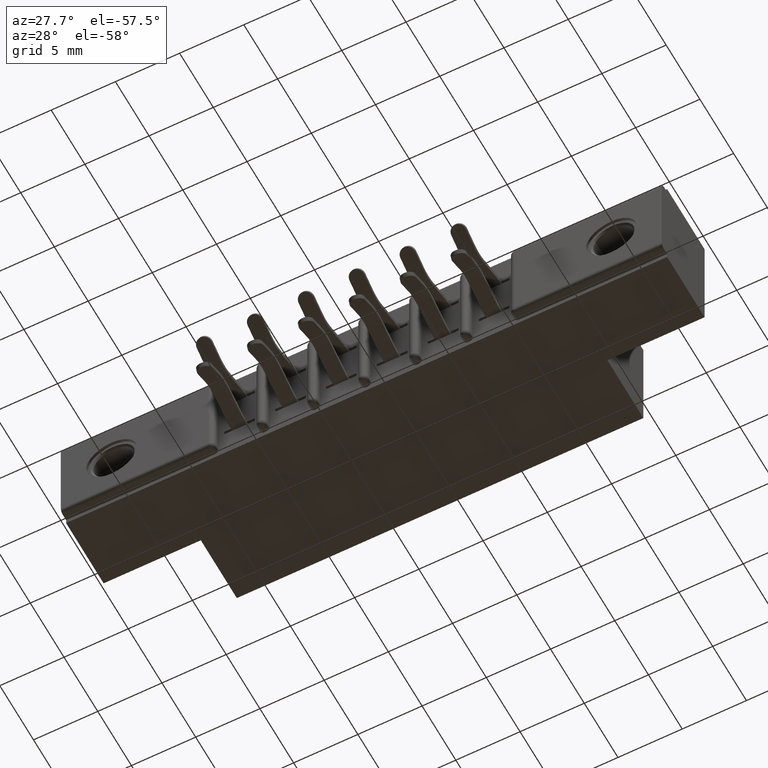
[diagram: clean part render]
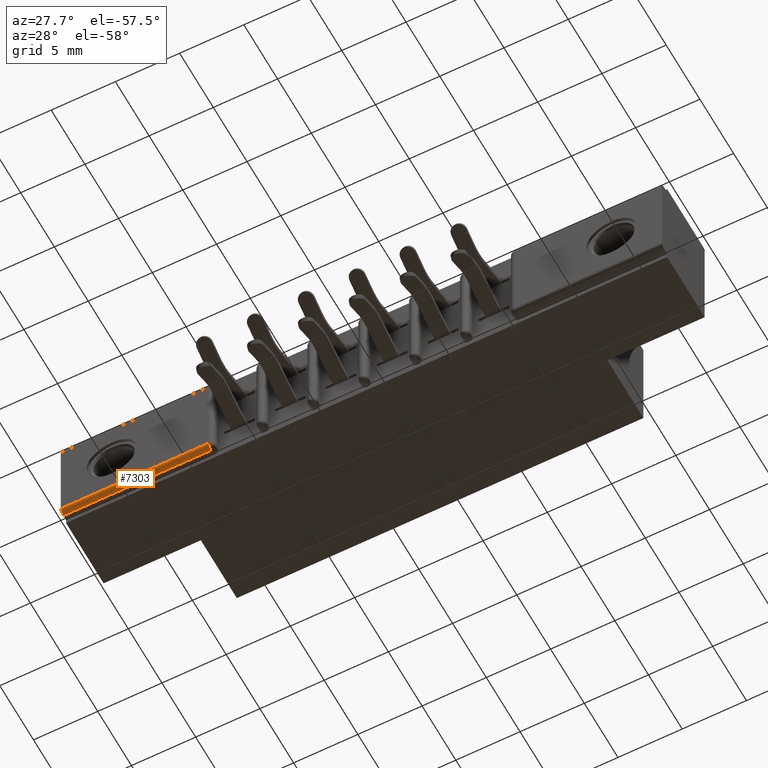
[diagram: same view with one face highlighted and labeled with its STEP entity id]
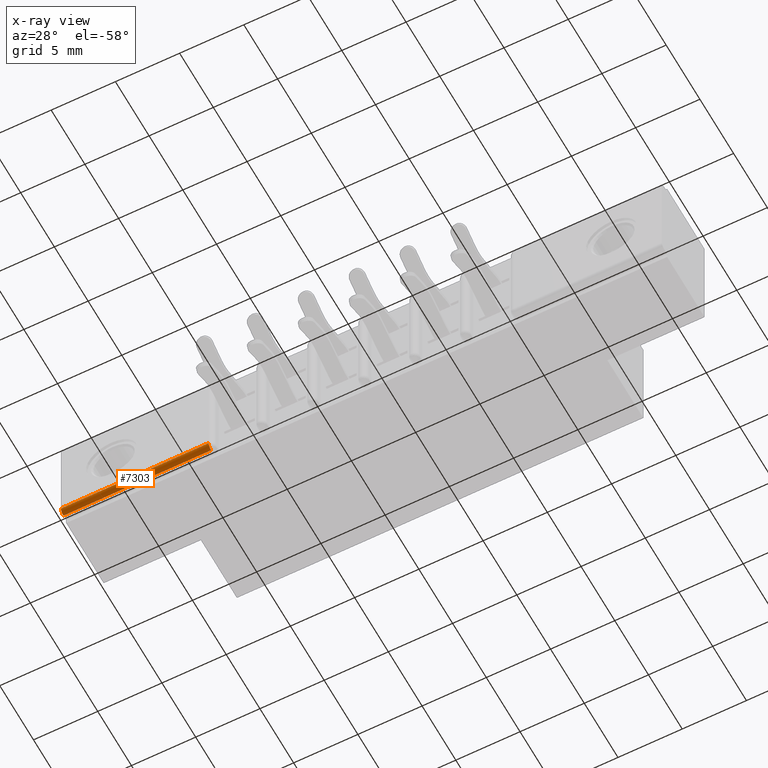
[diagram: x-ray of the same camera — body ghosted, the highlighted face saturated]
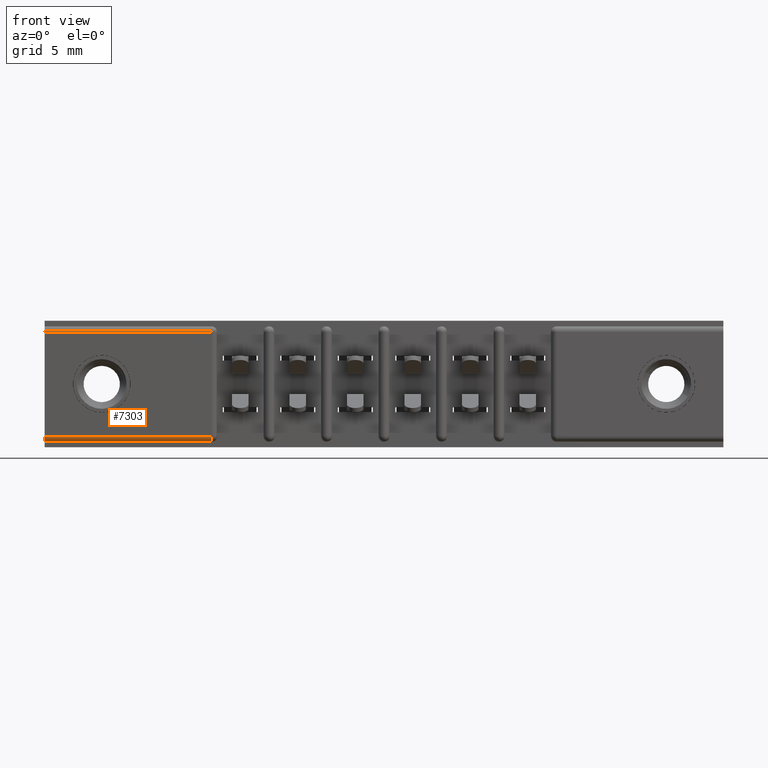
[diagram: same view with one face highlighted and labeled with its STEP entity id]
A machine part, auxiliary view. The second image highlights one B-rep face of the part: STEP entity #7303.
The next image is the same camera in x-ray: the body ghosted, the highlighted face saturated — about 0% of this face is hidden behind the body in this view.
A second angle (front view) of the same face is appended — the face is thin or edge-on in the first view.
In plain terms, the highlighted cylindrical surface (edge-blend (fillet) strip) has radius 0.381 mm, axis along (1, 0, 0).
Its self-contained STEP definition (entity closure, byte-faithful):
#132 = DIRECTION ( 'NONE',  ( -1.000000000000000000, -0.0000000000000000000, 0.0000000000000000000 ) ) ;
#863 = AXIS2_PLACEMENT_3D ( 'NONE', #5706, #1066, #7668 ) ;
#949 = EDGE_CURVE ( 'NONE', #7824, #11114, #11996, .T. ) ;
#1066 = DIRECTION ( 'NONE',  ( 1.000000000000000000, 0.0000000000000000000, -0.0000000000000000000 ) ) ;
#1350 = CYLINDRICAL_SURFACE ( 'NONE', #863, 0.01499999999999997700 ) ;
#2422 = EDGE_CURVE ( 'NONE', #7824, #10931, #10368, .T. ) ;
#3417 = EDGE_LOOP ( 'NONE', ( #8407, #11947, #9042, #9946 ) ) ;
#3750 = AXIS2_PLACEMENT_3D ( 'NONE', #10612, #132, #4909 ) ;
#4220 = VERTEX_POINT ( 'NONE', #9499 ) ;
#4233 = CARTESIAN_POINT ( 'NONE',  ( 0.4530000000000003500, 0.01499999999999999900, -0.3280000000000000100 ) ) ;
#4909 = DIRECTION ( 'NONE',  ( 0.0000000000000000000, 0.0000000000000000000, -1.000000000000000000 ) ) ;
#5706 = CARTESIAN_POINT ( 'NONE',  ( 1.842000000000000700, 0.01499999999999999900, -0.3130000000000000600 ) ) ;
#5860 = DIRECTION ( 'NONE',  ( -1.000000000000000000, 0.0000000000000000000, 0.0000000000000000000 ) ) ;
#7194 = DIRECTION ( 'NONE',  ( 1.000000000000000000, -0.0000000000000000000, -0.0000000000000000000 ) ) ;
#7303 = ADVANCED_FACE ( 'NONE', ( #10740 ), #1350, .T. ) ;
#7304 = CARTESIAN_POINT ( 'NONE',  ( 0.4530000000000003500, 0.0000000000000000000, -0.3130000000000000600 ) ) ;
#7400 = VECTOR ( 'NONE', #5860, 39.37007874015748100 ) ;
#7628 = CIRCLE ( 'NONE', #8928, 0.01499999999999997700 ) ;
#7668 = DIRECTION ( 'NONE',  ( 0.0000000000000000000, 0.0000000000000000000, -1.000000000000000000 ) ) ;
#7824 = VERTEX_POINT ( 'NONE', #4233 ) ;
#8407 = ORIENTED_EDGE ( 'NONE', *, *, #2422, .F. ) ;
#8872 = VECTOR ( 'NONE', #7194, 39.37007874015748100 ) ;
#8928 = AXIS2_PLACEMENT_3D ( 'NONE', #10344, #11152, #12216 ) ;
#9042 = ORIENTED_EDGE ( 'NONE', *, *, #10352, .F. ) ;
#9048 = CARTESIAN_POINT ( 'NONE',  ( 0.0000000000000000000, 0.01499999999999999900, -0.3280000000000000100 ) ) ;
#9499 = CARTESIAN_POINT ( 'NONE',  ( 0.0000000000000000000, 0.0000000000000000000, -0.3130000000000000600 ) ) ;
#9556 = EDGE_CURVE ( 'NONE', #10931, #4220, #7628, .T. ) ;
#9786 = LINE ( 'NONE', #10968, #8872 ) ;
#9946 = ORIENTED_EDGE ( 'NONE', *, *, #9556, .F. ) ;
#10344 = CARTESIAN_POINT ( 'NONE',  ( 0.0000000000000000000, 0.01499999999999999900, -0.3130000000000000600 ) ) ;
#10352 = EDGE_CURVE ( 'NONE', #4220, #11114, #9786, .T. ) ;
#10368 = LINE ( 'NONE', #10436, #7400 ) ;
#10436 = CARTESIAN_POINT ( 'NONE',  ( 0.0000000000000000000, 0.01499999999999999900, -0.3280000000000000100 ) ) ;
#10612 = CARTESIAN_POINT ( 'NONE',  ( 0.4530000000000003500, 0.01499999999999999900, -0.3130000000000000600 ) ) ;
#10740 = FACE_OUTER_BOUND ( 'NONE', #3417, .T. ) ;
#10931 = VERTEX_POINT ( 'NONE', #9048 ) ;
#10968 = CARTESIAN_POINT ( 'NONE',  ( 1.842000000000000700, 0.0000000000000000000, -0.3130000000000000600 ) ) ;
#11114 = VERTEX_POINT ( 'NONE', #7304 ) ;
#11152 = DIRECTION ( 'NONE',  ( -1.000000000000000000, 0.0000000000000000000, -0.0000000000000000000 ) ) ;
#11947 = ORIENTED_EDGE ( 'NONE', *, *, #949, .T. ) ;
#11996 = CIRCLE ( 'NONE', #3750, 0.01499999999999997700 ) ;
#12216 = DIRECTION ( 'NONE',  ( 0.0000000000000000000, 0.0000000000000000000, -1.000000000000000000 ) ) ;